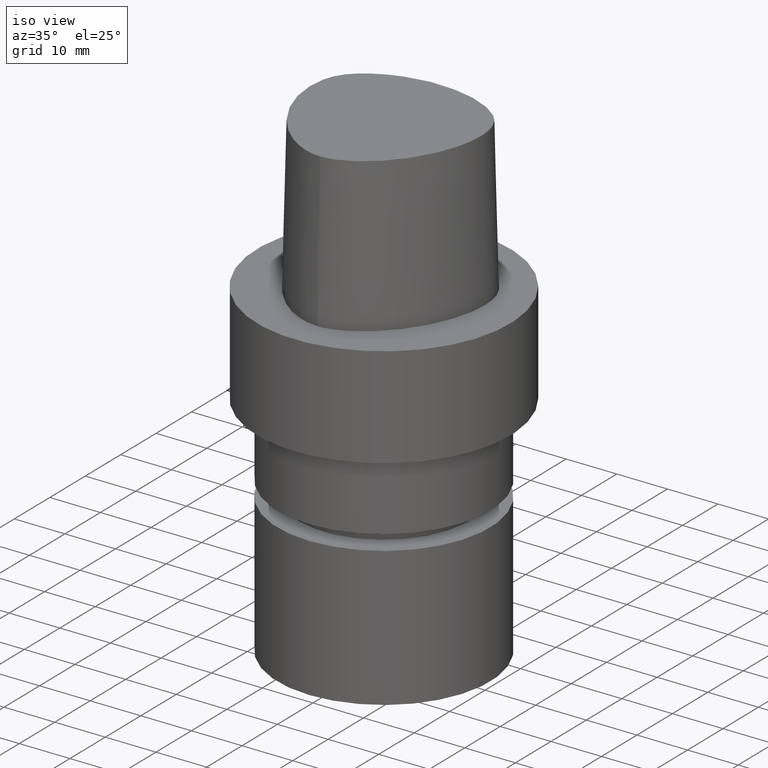
[diagram: clean part render]
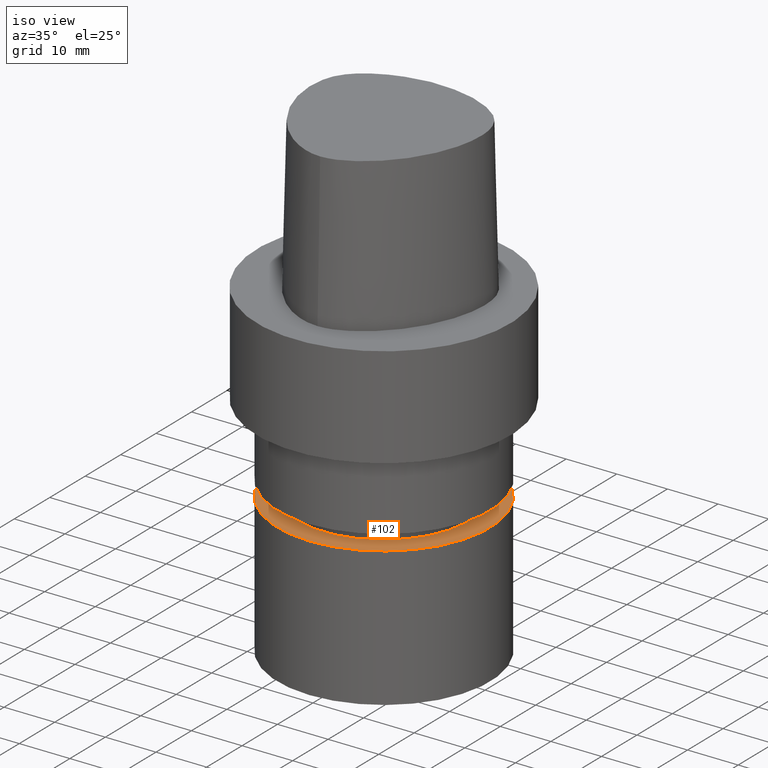
[diagram: same view with one face highlighted and labeled with its STEP entity id]
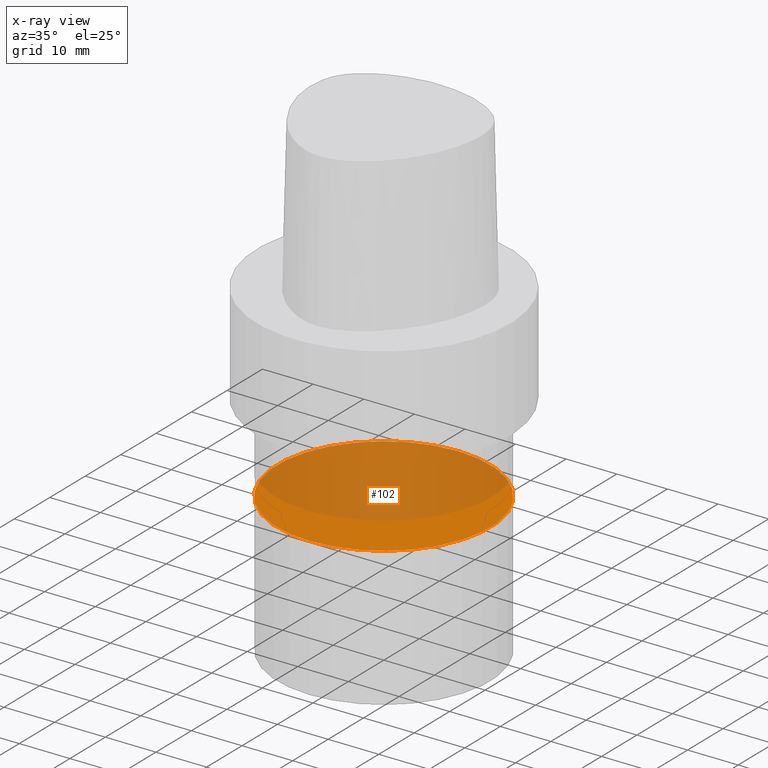
[diagram: x-ray of the same camera — body ghosted, the highlighted face saturated]
A machine part, iso view. The second image highlights one B-rep face of the part: STEP entity #102.
The next image is the same camera in x-ray: the body ghosted, the highlighted face saturated — about 66% of this face is hidden behind the body in this view.
In plain terms, the highlighted planar face has unit normal (-0, -0, 1).
Its self-contained STEP definition (entity closure, byte-faithful):
#102=ADVANCED_FACE('Unnamed[1]',(#225),#226,.T.);
#114=EDGE_CURVE('Unnamed[1]',#242,#242,#243,.T.);
#225=FACE_OUTER_BOUND('',#376,.T.);
#226=PLANE('',#377);
#242=VERTEX_POINT('',#783);
#243=CIRCLE('',#784,21.0);
#376=EDGE_LOOP('',(#1053));
#377=AXIS2_PLACEMENT_3D('',#1054,#1055,#1056);
#783=CARTESIAN_POINT('',(2.29621274840129E-015,21.0,-37.5));
#784=AXIS2_PLACEMENT_3D('',#1066,#1067,#1068);
#1053=ORIENTED_EDGE('',*,*,#114,.F.);
#1054=CARTESIAN_POINT('',(2.29621274840129E-015,10.5,-37.5));
#1055=DIRECTION('',(-6.12323399573677E-017,-1.22464679914735E-016,1.0));
#1056=DIRECTION('',(1.23259516440783E-032,-1.0,-1.22464679914735E-016));
#1066=CARTESIAN_POINT('',(2.29621274840129E-015,4.59242549680257E-015,-37.5));
#1067=DIRECTION('',(6.12323399573677E-017,1.22464679914735E-016,-1.0));
#1068=DIRECTION('',(-1.23259516440783E-032,1.0,1.22464679914735E-016));